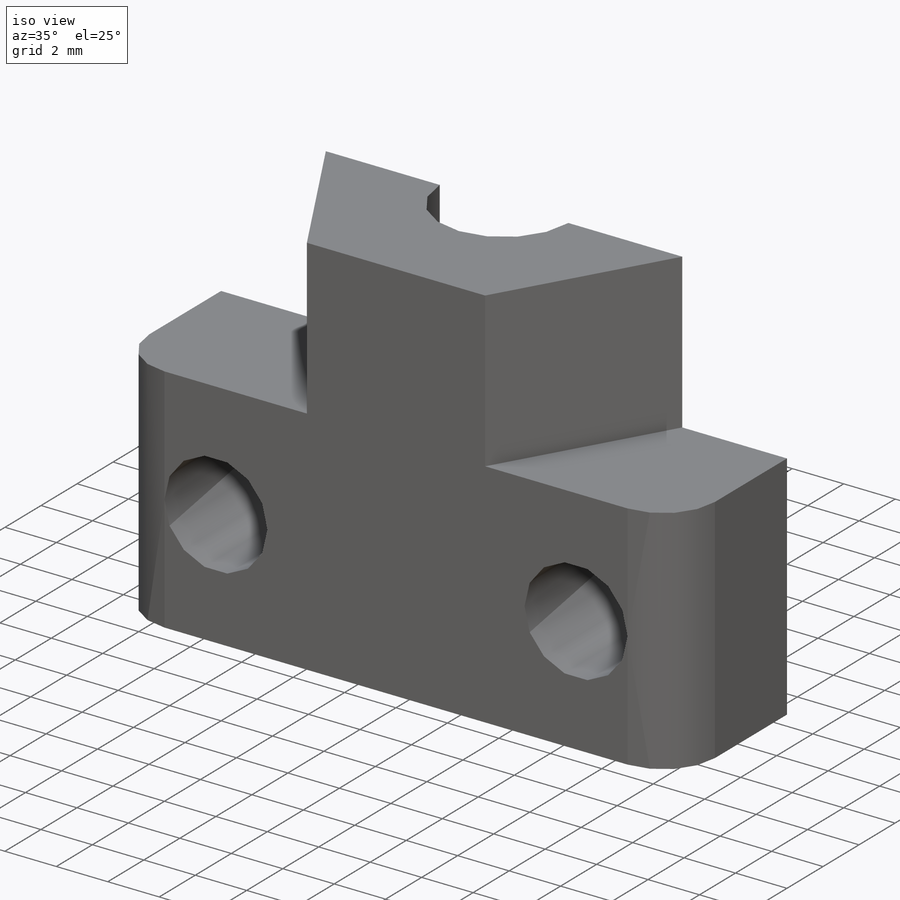
[diagram: iso view]
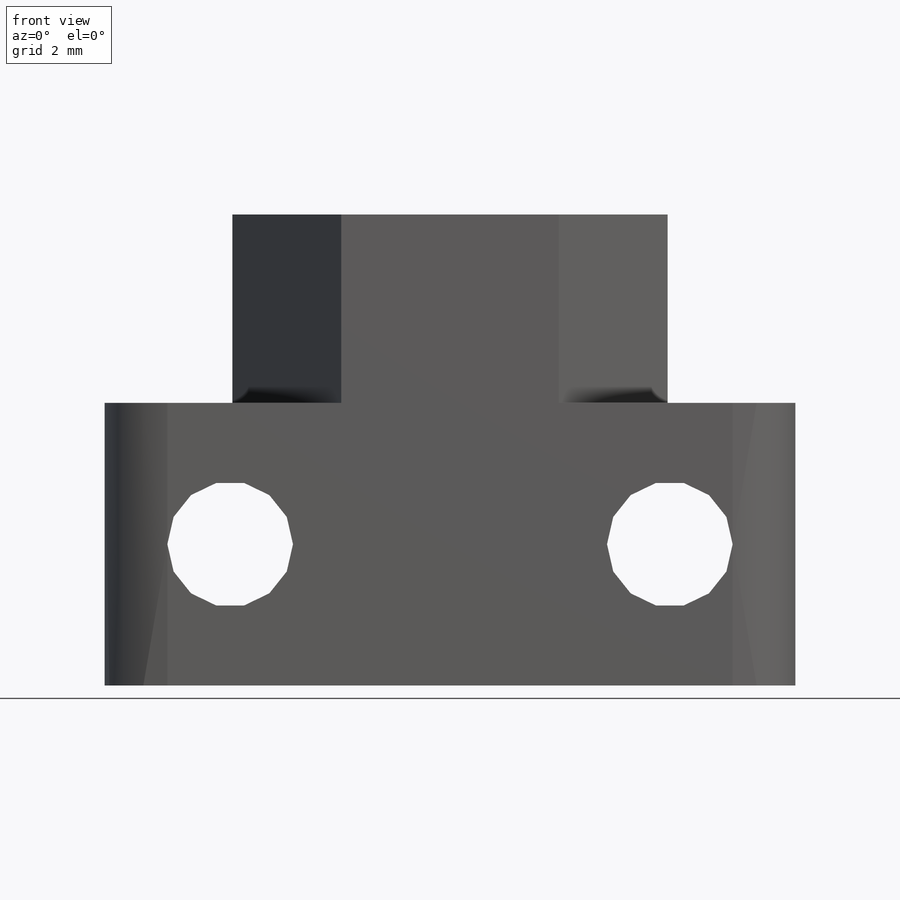
[diagram: front view]
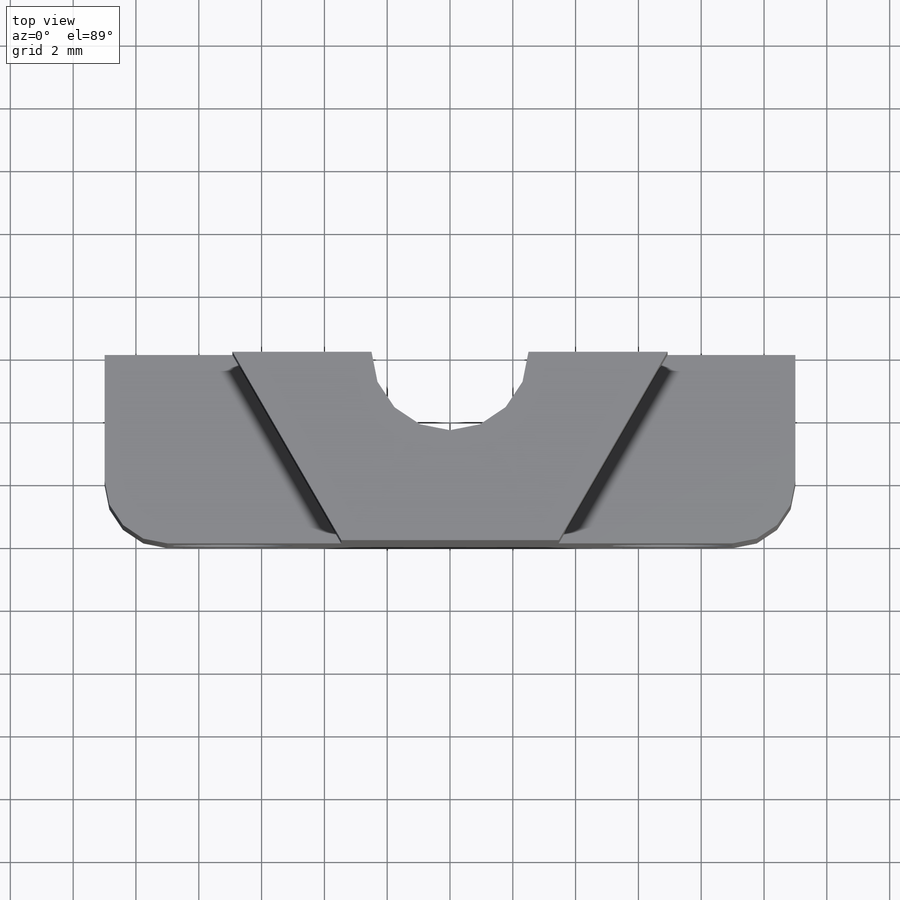
[diagram: top view]
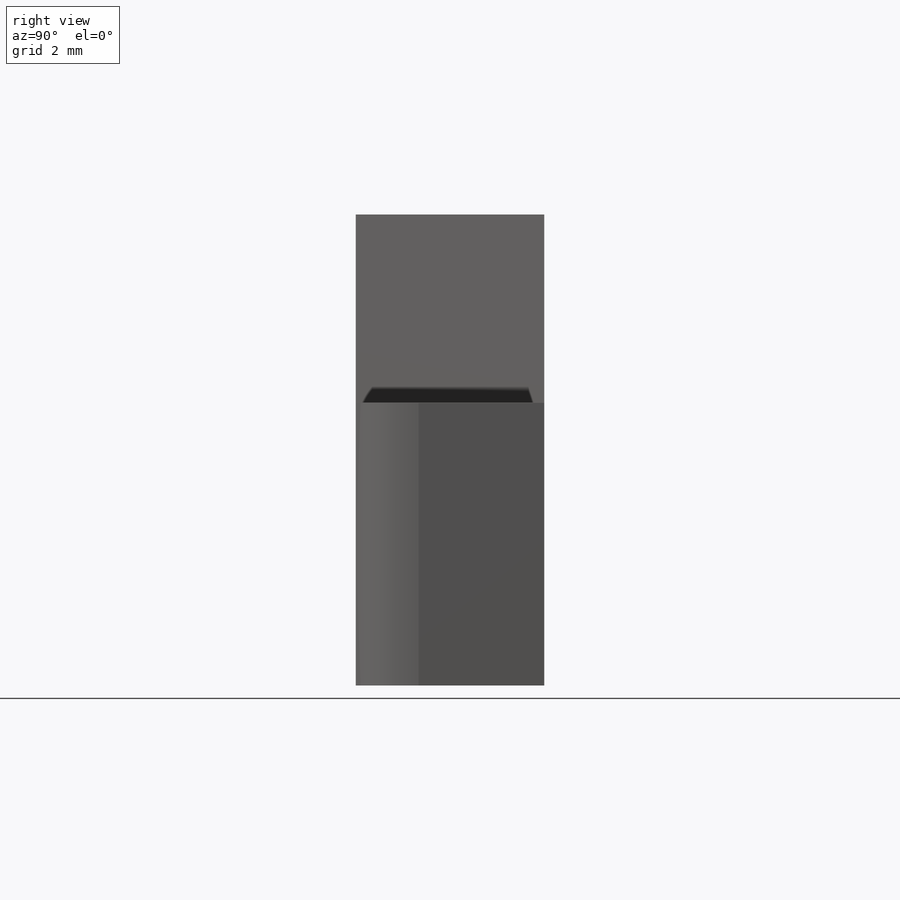
[diagram: right view]
SOLIDWORKS PART (.sldprt)
format: sldprt  version: not decoded by parser v0  size: 325,120 bytes
history: native  units: mm
features: sketch x8, cut_extrude x6, plane x3, extrude x2, material x1, fillet x1, mirror x1 (+8 scaffold rows collapsed)
feature tree (30):
  scaffold x8  (default folders/planes/origin — collapsed)
  material  "Материал <не указан>"
  plane  "Спереди"
  plane  "Сверху"
  plane  "Справа"
  sketch  "Эскиз1"  dims[D1=12.0mm D2=22.0mm]
  extrude  "Бобышка-Вытянуть1"  Depth=9mm
  fillet  "Скругление1"  Radius=2mm
  sketch  "Эскиз2"  dims[D1=7.2mm]
  cut_extrude  "Вырез-Вытянуть1"  Depth=8mm
  sketch  "Эскиз3"  dims[D1=10.0mm]
  cut_extrude  "Вырез-Вытянуть2"  Depth=2mm
  sketch  "Эскиз6"
  extrude  "Бобышка-Вытянуть2"  Depth=6mm
  sketch  "Эскиз7"  dims[D1=4.5mm]
  cut_extrude  "Вырез-Вытянуть5"  Depth=3mm
  sketch  "Эскиз8"  dims[D1=5.0mm]
  cut_extrude  "Вырез-Вытянуть6"  [1 undecoded]
  sketch  "Эскиз11"  dims[c1.D1=~1.605202mm c1.D2=4.0mm c2.D1=7.0mm]
  cut_extrude  "Вырез-Вытянуть9"  [1 undecoded]
  mirror  "Зеркальное отражение6"
  sketch  "Эскиз12"
  cut_extrude  "Вырез-Вытянуть10"  Depth=10mm
decode coverage: 13 of 18 modeling features carry decoded parameters
note: ~ marks probable driven/reference dimensions
note: 2 parameter values undecoded
note: suppression state not decoded; provenance and decode notes live in map.json
